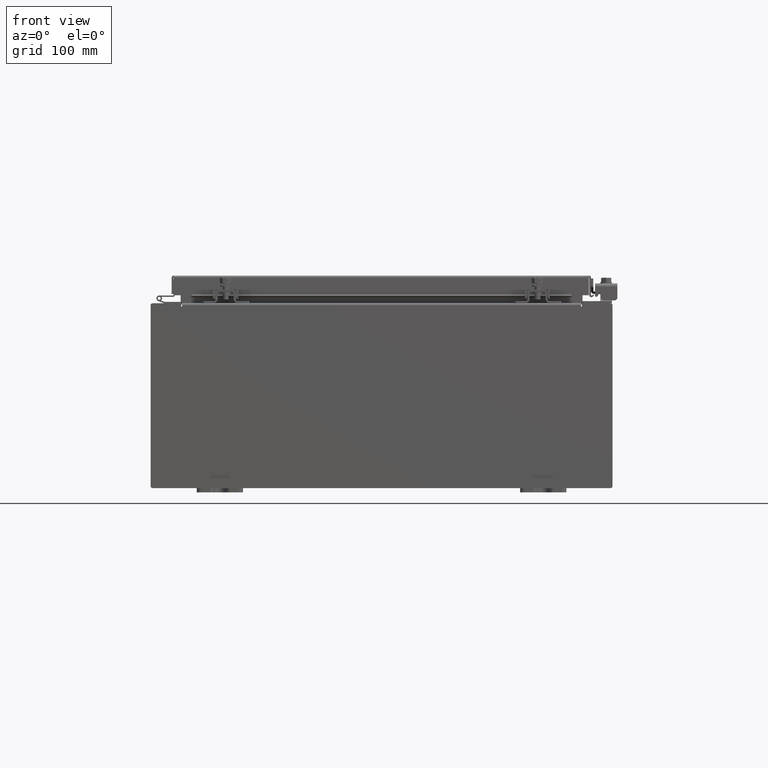
[diagram: clean part render]
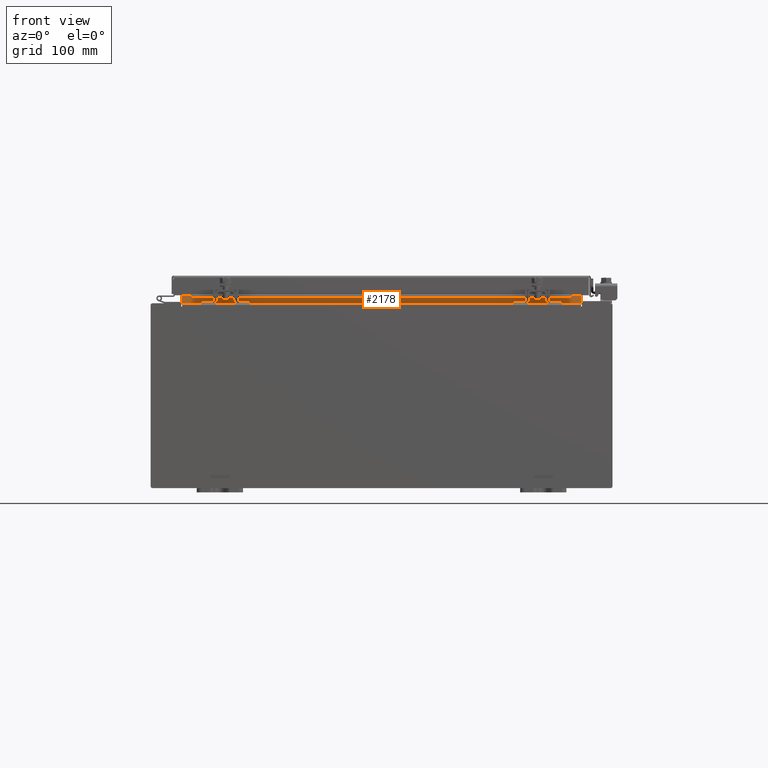
[diagram: same view with one face highlighted and labeled with its STEP entity id]
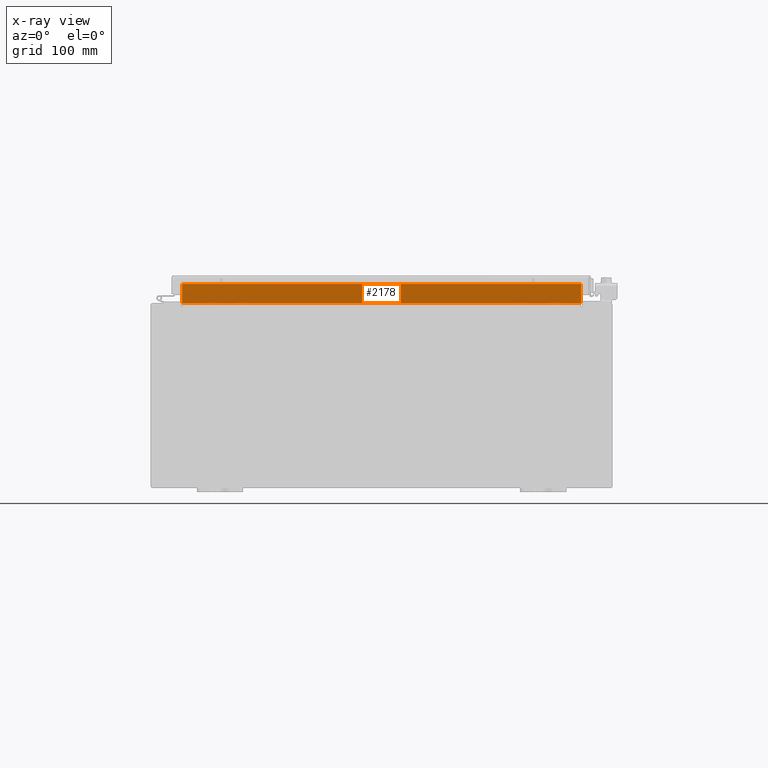
[diagram: x-ray of the same camera — body ghosted, the highlighted face saturated]
A machine part, front view. The second image highlights one B-rep face of the part: STEP entity #2178.
The next image is the same camera in x-ray: the body ghosted, the highlighted face saturated — about 0% of this face is hidden behind the body in this view.
In plain terms, the highlighted planar face has unit normal (0, -1, 0).
Its self-contained STEP definition (entity closure, byte-faithful):
#720 = EDGE_CURVE ( 'NONE', #29186, #21325, #14537, .T. ) ;
#1172 = ORIENTED_EDGE ( 'NONE', *, *, #28086, .F. ) ;
#1310 = ORIENTED_EDGE ( 'NONE', *, *, #25181, .F. ) ;
#2178 = ADVANCED_FACE ( 'NONE', ( #10242 ), #17371, .T. ) ;
#2230 = ORIENTED_EDGE ( 'NONE', *, *, #720, .F. ) ;
#2417 = VECTOR ( 'NONE', #10533, 39.37007874015748100 ) ;
#3019 = VERTEX_POINT ( 'NONE', #6955 ) ;
#3962 = LINE ( 'NONE', #16427, #9309 ) ;
#6218 = ORIENTED_EDGE ( 'NONE', *, *, #13354, .F. ) ;
#6955 = CARTESIAN_POINT ( 'NONE',  ( -8.637200000000000000, -1.300299999999999800, 4.013000000000003500 ) ) ;
#9309 = VECTOR ( 'NONE', #9684, 39.37007874015748100 ) ;
#9684 = DIRECTION ( 'NONE',  ( -0.0000000000000000000, -0.0000000000000000000, -1.000000000000000000 ) ) ;
#10198 = LINE ( 'NONE', #22477, #21562 ) ;
#10242 = FACE_OUTER_BOUND ( 'NONE', #14571, .T. ) ;
#10347 = CARTESIAN_POINT ( 'NONE',  ( 8.637200000000000000, -1.300299999999999800, 4.837600000000003700 ) ) ;
#10533 = DIRECTION ( 'NONE',  ( -0.0000000000000000000, -0.0000000000000000000, 1.000000000000000000 ) ) ;
#10647 = DIRECTION ( 'NONE',  ( 0.0000000000000000000, -0.0000000000000000000, 1.000000000000000000 ) ) ;
#12010 = DIRECTION ( 'NONE',  ( -1.000000000000000000, -0.0000000000000000000, -0.0000000000000000000 ) ) ;
#13354 = EDGE_CURVE ( 'NONE', #21325, #28392, #28958, .T. ) ;
#14537 = LINE ( 'NONE', #24810, #2417 ) ;
#14571 = EDGE_LOOP ( 'NONE', ( #1172, #6218, #2230, #1310 ) ) ;
#16427 = CARTESIAN_POINT ( 'NONE',  ( -8.637200000000000000, -1.300299999999999800, 4.000000000000004400 ) ) ;
#16871 = VECTOR ( 'NONE', #12010, 39.37007874015748100 ) ;
#17371 = PLANE ( 'NONE',  #24169 ) ;
#18645 = CARTESIAN_POINT ( 'NONE',  ( 8.637200000000000000, -1.300299999999999300, 4.837600000000003700 ) ) ;
#21325 = VERTEX_POINT ( 'NONE', #10347 ) ;
#21562 = VECTOR ( 'NONE', #24755, 39.37007874015748100 ) ;
#21965 = CARTESIAN_POINT ( 'NONE',  ( 0.0000000000000000000, -1.300299999999999800, 0.0000000000000000000 ) ) ;
#22058 = CARTESIAN_POINT ( 'NONE',  ( -8.637200000000000000, -1.300299999999999300, 4.837600000000003700 ) ) ;
#22477 = CARTESIAN_POINT ( 'NONE',  ( -8.637200000000000000, -1.300299999999999800, 4.013000000000003500 ) ) ;
#22739 = CARTESIAN_POINT ( 'NONE',  ( 8.637199999999996400, -1.300299999999999800, 4.013000000000003500 ) ) ;
#24169 = AXIS2_PLACEMENT_3D ( 'NONE', #21965, #24225, #10647 ) ;
#24225 = DIRECTION ( 'NONE',  ( 0.0000000000000000000, 1.000000000000000000, 0.0000000000000000000 ) ) ;
#24755 = DIRECTION ( 'NONE',  ( 1.000000000000000000, 0.0000000000000000000, -3.162886113166609200E-017 ) ) ;
#24810 = CARTESIAN_POINT ( 'NONE',  ( 8.637200000000000000, -1.300299999999999800, 4.925300000000004500 ) ) ;
#25181 = EDGE_CURVE ( 'NONE', #3019, #29186, #10198, .T. ) ;
#28086 = EDGE_CURVE ( 'NONE', #28392, #3019, #3962, .T. ) ;
#28392 = VERTEX_POINT ( 'NONE', #22058 ) ;
#28958 = LINE ( 'NONE', #18645, #16871 ) ;
#29186 = VERTEX_POINT ( 'NONE', #22739 ) ;